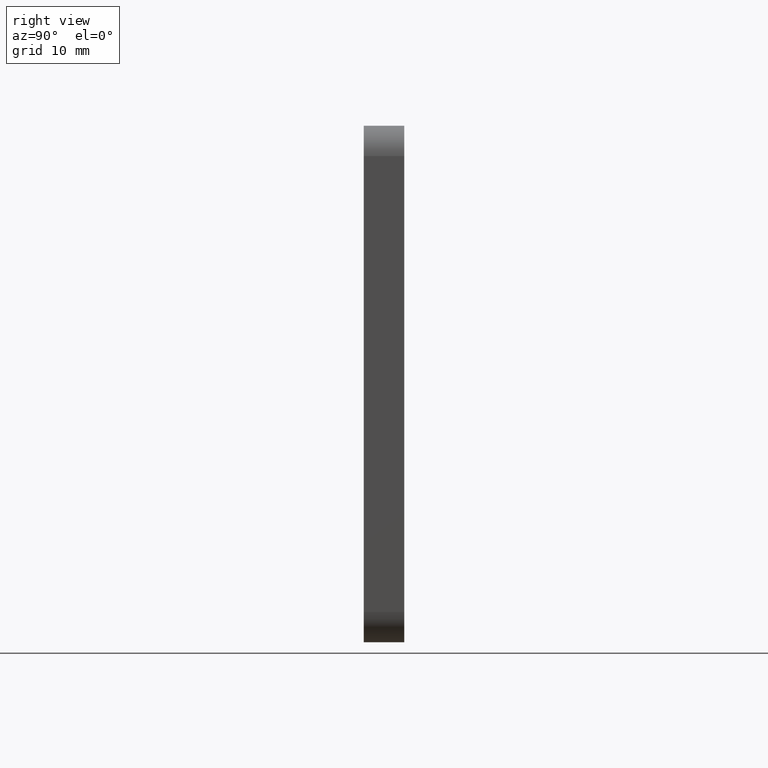
[diagram: clean part render]
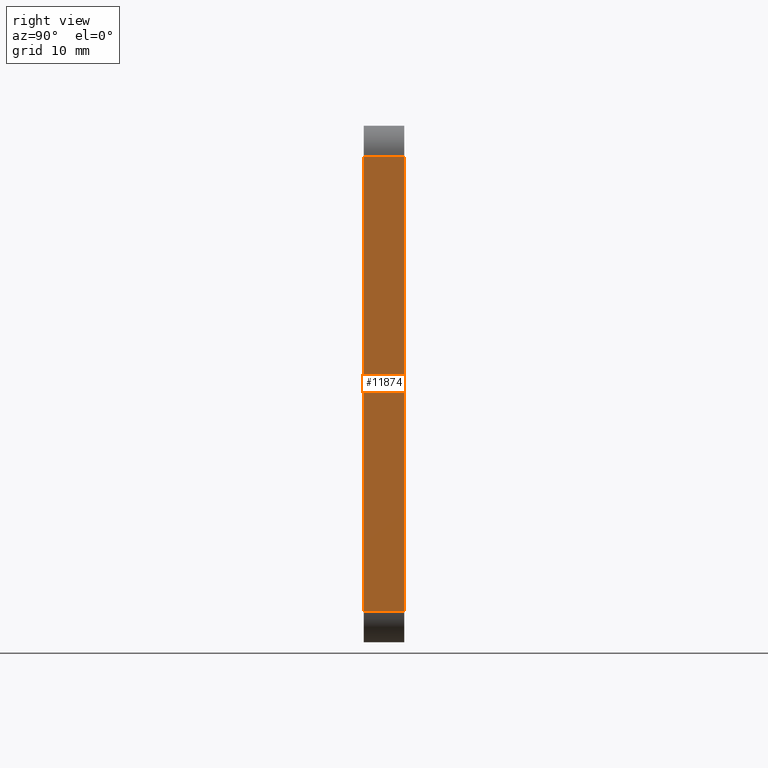
[diagram: same view with one face highlighted and labeled with its STEP entity id]
A machine part, right view. The second image highlights one B-rep face of the part: STEP entity #11874.
In plain terms, the highlighted planar face has unit normal (-1, 0, 0).
Its self-contained STEP definition (entity closure, byte-faithful):
#572 = LINE ( 'NONE', #3877, #4188 ) ;
#1729 = EDGE_CURVE ( 'NONE', #15474, #10520, #11937, .T. ) ;
#2972 = ORIENTED_EDGE ( 'NONE', *, *, #8698, .F. ) ;
#3507 = VECTOR ( 'NONE', #13594, 1000.000000000000000 ) ;
#3877 = CARTESIAN_POINT ( 'NONE',  ( 25.49999999999999600, 4.000000000000000000, -25.49999999999999600 ) ) ;
#4188 = VECTOR ( 'NONE', #10410, 1000.000000000000000 ) ;
#4382 = EDGE_CURVE ( 'NONE', #10520, #13501, #6141, .T. ) ;
#4757 = CARTESIAN_POINT ( 'NONE',  ( 25.50000000000000400, 4.000000000000000000, 22.49999999999999300 ) ) ;
#5133 = FACE_OUTER_BOUND ( 'NONE', #10893, .T. ) ;
#5760 = VECTOR ( 'NONE', #15004, 1000.000000000000000 ) ;
#6141 = LINE ( 'NONE', #8697, #5760 ) ;
#6949 = CARTESIAN_POINT ( 'NONE',  ( 25.50000000000000400, 0.0000000000000000000, 22.49999999999999300 ) ) ;
#7603 = CARTESIAN_POINT ( 'NONE',  ( 25.49999999999999600, 0.0000000000000000000, -25.49999999999999600 ) ) ;
#8697 = CARTESIAN_POINT ( 'NONE',  ( 25.49999999999999600, 4.000000000000000000, -22.49999999999999600 ) ) ;
#8698 = EDGE_CURVE ( 'NONE', #11301, #13501, #572, .T. ) ;
#9219 = PLANE ( 'NONE',  #12394 ) ;
#9751 = CARTESIAN_POINT ( 'NONE',  ( 25.49999999999999600, 4.000000000000000000, -22.49999999999999600 ) ) ;
#9854 = ORIENTED_EDGE ( 'NONE', *, *, #4382, .T. ) ;
#9920 = ORIENTED_EDGE ( 'NONE', *, *, #1729, .T. ) ;
#10399 = CARTESIAN_POINT ( 'NONE',  ( 25.49999999999999600, 0.0000000000000000000, -22.49999999999999600 ) ) ;
#10410 = DIRECTION ( 'NONE',  ( -1.360567432138672600E-016, -0.0000000000000000000, -1.000000000000000000 ) ) ;
#10520 = VERTEX_POINT ( 'NONE', #10399 ) ;
#10546 = EDGE_CURVE ( 'NONE', #11301, #15474, #10873, .T. ) ;
#10873 = LINE ( 'NONE', #13177, #14892 ) ;
#10893 = EDGE_LOOP ( 'NONE', ( #9920, #9854, #2972, #15815 ) ) ;
#11301 = VERTEX_POINT ( 'NONE', #4757 ) ;
#11575 = DIRECTION ( 'NONE',  ( 1.360567432138672600E-016, 0.0000000000000000000, 1.000000000000000000 ) ) ;
#11874 = ADVANCED_FACE ( 'NONE', ( #5133 ), #9219, .F. ) ;
#11937 = LINE ( 'NONE', #7603, #3507 ) ;
#12394 = AXIS2_PLACEMENT_3D ( 'NONE', #15262, #12960, #11575 ) ;
#12960 = DIRECTION ( 'NONE',  ( -1.000000000000000000, 0.0000000000000000000, 1.360567432138672600E-016 ) ) ;
#13177 = CARTESIAN_POINT ( 'NONE',  ( 25.50000000000000400, 4.000000000000000000, 22.49999999999999300 ) ) ;
#13501 = VERTEX_POINT ( 'NONE', #9751 ) ;
#13594 = DIRECTION ( 'NONE',  ( -1.360567432138672600E-016, -0.0000000000000000000, -1.000000000000000000 ) ) ;
#14422 = DIRECTION ( 'NONE',  ( 0.0000000000000000000, -1.000000000000000000, 0.0000000000000000000 ) ) ;
#14892 = VECTOR ( 'NONE', #14422, 1000.000000000000000 ) ;
#15004 = DIRECTION ( 'NONE',  ( -0.0000000000000000000, 1.000000000000000000, -0.0000000000000000000 ) ) ;
#15262 = CARTESIAN_POINT ( 'NONE',  ( 25.49999999999999600, 4.000000000000000000, -25.49999999999999600 ) ) ;
#15474 = VERTEX_POINT ( 'NONE', #6949 ) ;
#15815 = ORIENTED_EDGE ( 'NONE', *, *, #10546, .T. ) ;